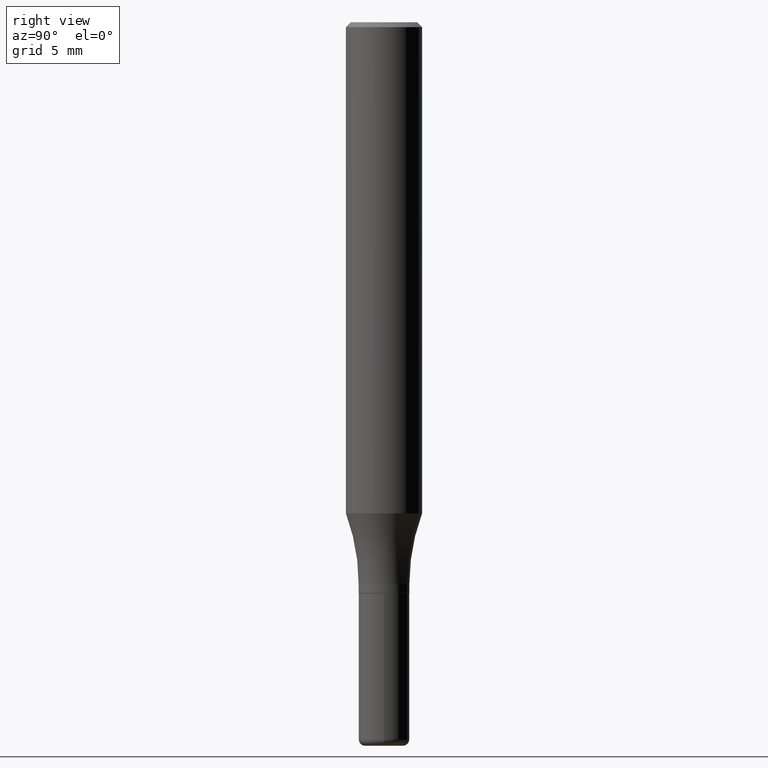
[diagram: clean part render]
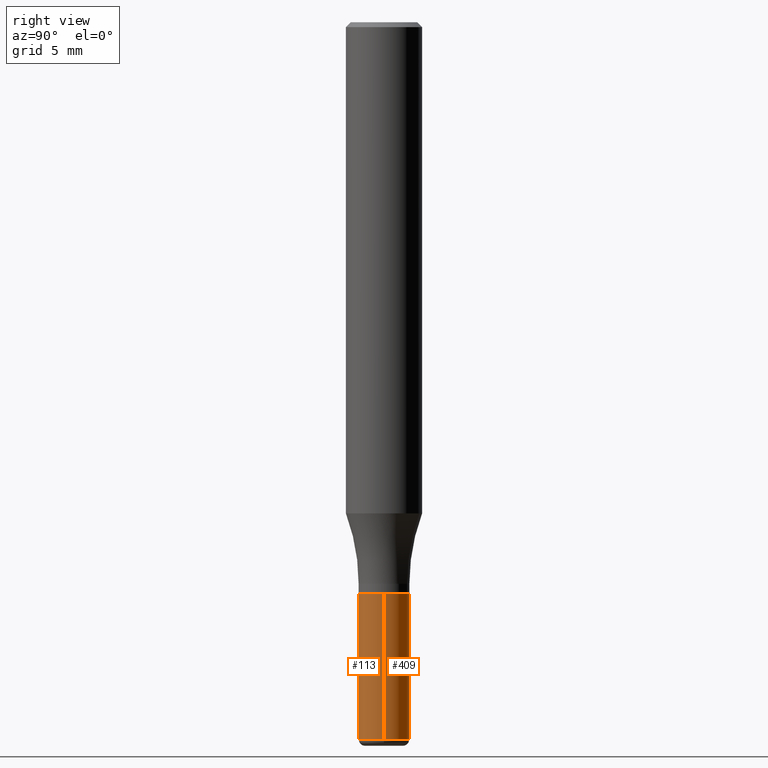
[diagram: same view with one multi-face feature highlighted, each face labeled with its STEP entity id]
A machine part, right view. The highlighted faces form ONE feature: a constant-radius fillet chain: 2 tangent blend faces with common blend radius 2.0003 mm. The faces share edges in the B-rep.
Their STEP definitions:
[1] entity #113 (Cylinder):
#14 = FACE_OUTER_BOUND ( 'NONE', #261, .T. ) ;
#16 = VERTEX_POINT ( 'NONE', #295 ) ;
#40 = DIRECTION ( 'NONE',  ( -2.445468806185136877E-29, 3.491481338843145188E-15, 1.000000000000000000 ) ) ;
#42 = ORIENTED_EDGE ( 'NONE', *, *, #286, .F. ) ;
#57 = CARTESIAN_POINT ( 'NONE',  ( 0.000000000000000000, 0.000000000000000000, 0.000000000000000000 ) ) ;
#70 = CARTESIAN_POINT ( 'NONE',  ( 0.07875000000000016709, -8.316359400990487656E-15, -2.224399999999999711 ) ) ;
#74 = LINE ( 'NONE', #239, #424 ) ;
#77 = DIRECTION ( 'NONE',  ( -2.445468806185136877E-29, 3.491481338843145188E-15, 1.000000000000000000 ) ) ;
#92 = EDGE_CURVE ( 'NONE', #462, #16, #433, .T. ) ;
#95 = CYLINDRICAL_SURFACE ( 'NONE', #390, 0.07875000000000008382 ) ;
#96 = ORIENTED_EDGE ( 'NONE', *, *, #274, .T. ) ;
#113 = ADVANCED_FACE ( 'NONE', ( #14 ), #95, .T. ) ;
#114 = CARTESIAN_POINT ( 'NONE',  ( 5.439700812478218014E-29, -7.766451090122692732E-15, -2.224399999999999711 ) ) ;
#119 = CIRCLE ( 'NONE', #131, 0.07875000000000016709 ) ;
#131 = AXIS2_PLACEMENT_3D ( 'NONE', #114, #363, #280 ) ;
#161 = CARTESIAN_POINT ( 'NONE',  ( 4.332637083918206427E-29, -6.185857488028401081E-15, -1.771700000000000053 ) ) ;
#191 = VERTEX_POINT ( 'NONE', #70 ) ;
#195 = CIRCLE ( 'NONE', #415, 0.07875000000000000056 ) ;
#238 = CARTESIAN_POINT ( 'NONE',  ( 0.07875000000000000056, -6.735765798896194427E-15, -1.771700000000000053 ) ) ;
#239 = CARTESIAN_POINT ( 'NONE',  ( 0.07875000000000008382, -5.499083108677941345E-16, 3.839989210939303220E-30 ) ) ;
#245 = VECTOR ( 'NONE', #40, 39.37007874015748143 ) ;
#246 = DIRECTION ( 'NONE',  ( 1.000000000000000000, -6.982962677686267499E-15, 4.876176775795935232E-29 ) ) ;
#254 = DIRECTION ( 'NONE',  ( -2.445468806185136597E-29, 3.491481338843145583E-15, 1.000000000000000000 ) ) ;
#261 = EDGE_LOOP ( 'NONE', ( #507, #454, #96, #42 ) ) ;
#268 = EDGE_CURVE ( 'NONE', #462, #191, #119, .T. ) ;
#273 = VERTEX_POINT ( 'NONE', #238 ) ;
#274 = EDGE_CURVE ( 'NONE', #191, #273, #74, .T. ) ;
#280 = DIRECTION ( 'NONE',  ( 1.000000000000000000, -6.982962677686271444E-15, 0.000000000000000000 ) ) ;
#286 = EDGE_CURVE ( 'NONE', #16, #273, #195, .T. ) ;
#295 = CARTESIAN_POINT ( 'NONE',  ( -0.07875000000000000056, -6.416601884664467316E-15, -1.771700000000000053 ) ) ;
#354 = DIRECTION ( 'NONE',  ( 1.000000000000000000, -6.982962677686261977E-15, 0.000000000000000000 ) ) ;
#363 = DIRECTION ( 'NONE',  ( -2.445468806185136597E-29, 3.491481338843145583E-15, 1.000000000000000000 ) ) ;
#370 = CARTESIAN_POINT ( 'NONE',  ( -0.07875000000000016709, -6.416601884664464950E-15, -2.224399999999999711 ) ) ;
#390 = AXIS2_PLACEMENT_3D ( 'NONE', #57, #254, #246 ) ;
#399 = DIRECTION ( 'NONE',  ( -2.445468806185136597E-29, 3.491481338843145583E-15, 1.000000000000000000 ) ) ;
#415 = AXIS2_PLACEMENT_3D ( 'NONE', #161, #399, #354 ) ;
#424 = VECTOR ( 'NONE', #77, 39.37007874015748143 ) ;
#433 = LINE ( 'NONE', #484, #245 ) ;
#454 = ORIENTED_EDGE ( 'NONE', *, *, #268, .T. ) ;
#462 = VERTEX_POINT ( 'NONE', #370 ) ;
#484 = CARTESIAN_POINT ( 'NONE',  ( -0.07875000000000008382, 5.595524044110794920E-16, -3.873661383575742696E-30 ) ) ;
#507 = ORIENTED_EDGE ( 'NONE', *, *, #92, .F. ) ;
[2] entity #409 (Cylinder):
#5 = ORIENTED_EDGE ( 'NONE', *, *, #274, .F. ) ;
#16 = VERTEX_POINT ( 'NONE', #295 ) ;
#20 = ORIENTED_EDGE ( 'NONE', *, *, #416, .T. ) ;
#33 = CYLINDRICAL_SURFACE ( 'NONE', #299, 0.07875000000000008382 ) ;
#34 = DIRECTION ( 'NONE',  ( 1.000000000000000000, -6.982962677686271444E-15, 0.000000000000000000 ) ) ;
#40 = DIRECTION ( 'NONE',  ( -2.445468806185136877E-29, 3.491481338843145188E-15, 1.000000000000000000 ) ) ;
#58 = CIRCLE ( 'NONE', #264, 0.07875000000000016709 ) ;
#61 = DIRECTION ( 'NONE',  ( -2.445468806185136597E-29, 3.491481338843145583E-15, 1.000000000000000000 ) ) ;
#70 = CARTESIAN_POINT ( 'NONE',  ( 0.07875000000000016709, -8.316359400990487656E-15, -2.224399999999999711 ) ) ;
#74 = LINE ( 'NONE', #239, #424 ) ;
#77 = DIRECTION ( 'NONE',  ( -2.445468806185136877E-29, 3.491481338843145188E-15, 1.000000000000000000 ) ) ;
#92 = EDGE_CURVE ( 'NONE', #462, #16, #433, .T. ) ;
#100 = CARTESIAN_POINT ( 'NONE',  ( 4.332637083918206427E-29, -6.185857488028401081E-15, -1.771700000000000053 ) ) ;
#144 = EDGE_CURVE ( 'NONE', #273, #16, #279, .T. ) ;
#157 = DIRECTION ( 'NONE',  ( 1.000000000000000000, -6.982962677686267499E-15, 4.876176775795935232E-29 ) ) ;
#169 = ORIENTED_EDGE ( 'NONE', *, *, #92, .T. ) ;
#191 = VERTEX_POINT ( 'NONE', #70 ) ;
#192 = CARTESIAN_POINT ( 'NONE',  ( 0.000000000000000000, 0.000000000000000000, 0.000000000000000000 ) ) ;
#213 = DIRECTION ( 'NONE',  ( 1.000000000000000000, -6.982962677686261977E-15, 0.000000000000000000 ) ) ;
#229 = DIRECTION ( 'NONE',  ( -2.445468806185136597E-29, 3.491481338843145583E-15, 1.000000000000000000 ) ) ;
#238 = CARTESIAN_POINT ( 'NONE',  ( 0.07875000000000000056, -6.735765798896194427E-15, -1.771700000000000053 ) ) ;
#239 = CARTESIAN_POINT ( 'NONE',  ( 0.07875000000000008382, -5.499083108677941345E-16, 3.839989210939303220E-30 ) ) ;
#245 = VECTOR ( 'NONE', #40, 39.37007874015748143 ) ;
#264 = AXIS2_PLACEMENT_3D ( 'NONE', #393, #317, #34 ) ;
#273 = VERTEX_POINT ( 'NONE', #238 ) ;
#274 = EDGE_CURVE ( 'NONE', #191, #273, #74, .T. ) ;
#279 = CIRCLE ( 'NONE', #369, 0.07875000000000000056 ) ;
#295 = CARTESIAN_POINT ( 'NONE',  ( -0.07875000000000000056, -6.416601884664467316E-15, -1.771700000000000053 ) ) ;
#299 = AXIS2_PLACEMENT_3D ( 'NONE', #192, #229, #157 ) ;
#303 = ORIENTED_EDGE ( 'NONE', *, *, #144, .F. ) ;
#317 = DIRECTION ( 'NONE',  ( -2.445468806185136597E-29, 3.491481338843145583E-15, 1.000000000000000000 ) ) ;
#369 = AXIS2_PLACEMENT_3D ( 'NONE', #100, #61, #213 ) ;
#370 = CARTESIAN_POINT ( 'NONE',  ( -0.07875000000000016709, -6.416601884664464950E-15, -2.224399999999999711 ) ) ;
#393 = CARTESIAN_POINT ( 'NONE',  ( 5.439700812478218014E-29, -7.766451090122692732E-15, -2.224399999999999711 ) ) ;
#409 = ADVANCED_FACE ( 'NONE', ( #430 ), #33, .T. ) ;
#416 = EDGE_CURVE ( 'NONE', #191, #462, #58, .T. ) ;
#424 = VECTOR ( 'NONE', #77, 39.37007874015748143 ) ;
#430 = FACE_OUTER_BOUND ( 'NONE', #499, .T. ) ;
#433 = LINE ( 'NONE', #484, #245 ) ;
#462 = VERTEX_POINT ( 'NONE', #370 ) ;
#484 = CARTESIAN_POINT ( 'NONE',  ( -0.07875000000000008382, 5.595524044110794920E-16, -3.873661383575742696E-30 ) ) ;
#499 = EDGE_LOOP ( 'NONE', ( #20, #169, #303, #5 ) ) ;